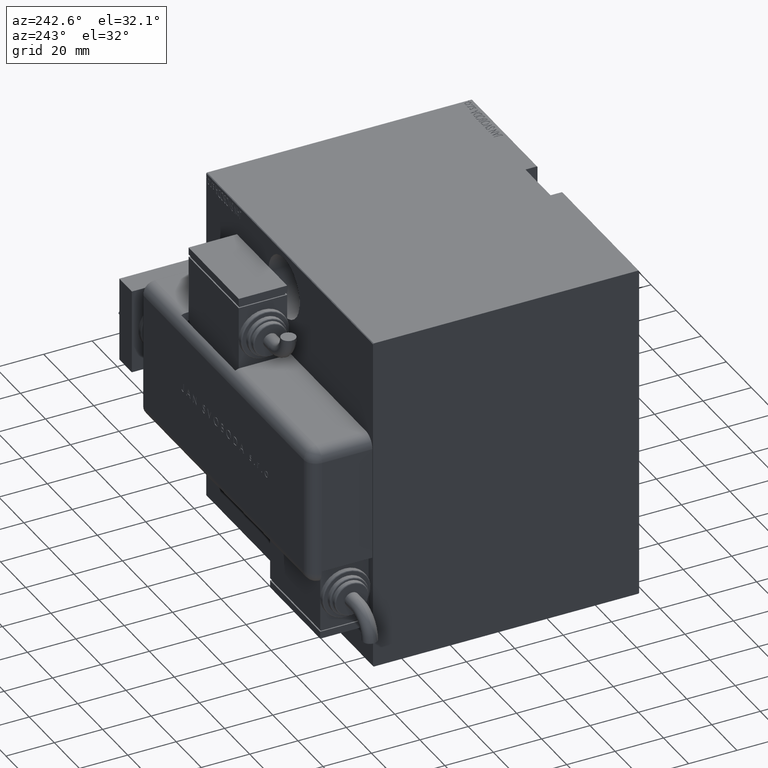
[diagram: clean part render]
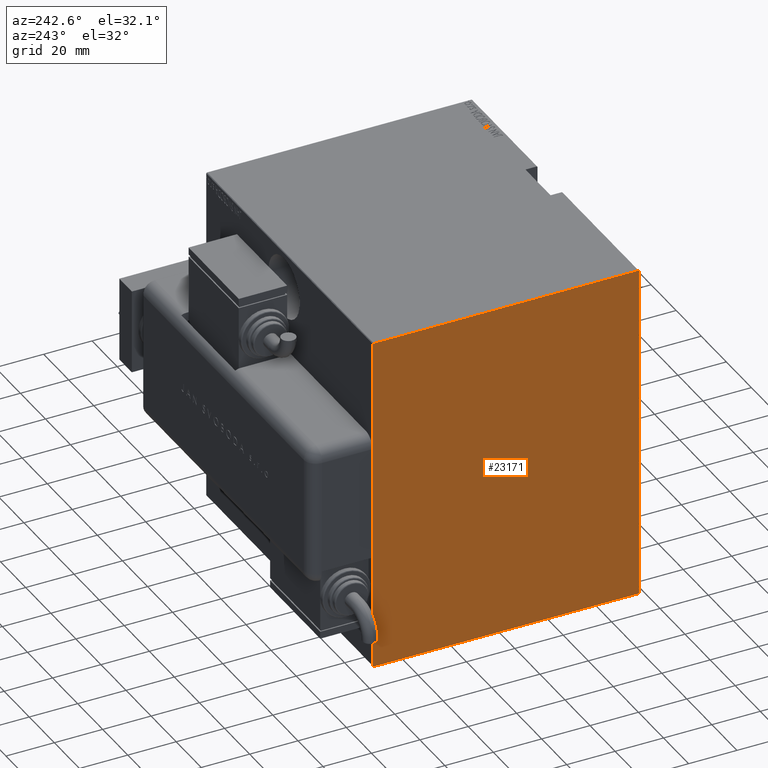
[diagram: same view with one face highlighted and labeled with its STEP entity id]
A machine part, auxiliary view. The second image highlights one B-rep face of the part: STEP entity #23171.
In plain terms, the highlighted planar face has unit normal (-1, 0, 0).
Its self-contained STEP definition (entity closure, byte-faithful):
#76 = CARTESIAN_POINT ( 'NONE',  ( 133.0000000000000000, -54.69999999999999574, 69.99999999999998579 ) ) ;
#165 = CARTESIAN_POINT ( 'NONE',  ( 133.0000000000000000, 62.34999999999749321, -62.35000000000325571 ) ) ;
#758 = EDGE_CURVE ( 'NONE', #52695, #34155, #58265, .T. ) ;
#1561 = LINE ( 'NONE', #24647, #45983 ) ;
#2061 = CARTESIAN_POINT ( 'NONE',  ( 133.0000000000000000, -54.99999999999999289, -70.00000000000001421 ) ) ;
#3251 = FACE_OUTER_BOUND ( 'NONE', #41479, .T. ) ;
#4782 = LINE ( 'NONE', #55440, #19285 ) ;
#5853 = DIRECTION ( 'NONE',  ( -0.000000000000000000, -0.7071067811865638930, 0.7071067811865311414 ) ) ;
#6506 = AXIS2_PLACEMENT_3D ( 'NONE', #16590, #53029, #30207 ) ;
#6795 = DIRECTION ( 'NONE',  ( -0.000000000000000000, 0.7071067811865474617, -0.7071067811865474617 ) ) ;
#7361 = DIRECTION ( 'NONE',  ( 0.000000000000000000, -1.000000000000000000, -1.261617073437677999E-16 ) ) ;
#7946 = CARTESIAN_POINT ( 'NONE',  ( 133.0000000000000000, 54.99999999999999289, 70.00000000000000000 ) ) ;
#10211 = CARTESIAN_POINT ( 'NONE',  ( 133.0000000000000000, 54.70000000000002416, -70.00000000000001421 ) ) ;
#10655 = CARTESIAN_POINT ( 'NONE',  ( 133.0000000000000000, -62.35000000000001563, -62.35000000000001563 ) ) ;
#15171 = VERTEX_POINT ( 'NONE', #76 ) ;
#16023 = ORIENTED_EDGE ( 'NONE', *, *, #43296, .T. ) ;
#16590 = CARTESIAN_POINT ( 'NONE',  ( 133.0000000000000000, 0.000000000000000000, 0.000000000000000000 ) ) ;
#17731 = EDGE_CURVE ( 'NONE', #34155, #20257, #1561, .T. ) ;
#18953 = VECTOR ( 'NONE', #38471, 1000.000000000000000 ) ;
#19121 = VECTOR ( 'NONE', #5853, 1000.000000000000000 ) ;
#19285 = VECTOR ( 'NONE', #26989, 1000.000000000000114 ) ;
#19562 = LINE ( 'NONE', #2061, #23854 ) ;
#19642 = DIRECTION ( 'NONE',  ( 0.000000000000000000, -1.982541115402065110E-16, 1.000000000000000000 ) ) ;
#20257 = VERTEX_POINT ( 'NONE', #42714 ) ;
#20476 = EDGE_CURVE ( 'NONE', #40123, #31833, #51241, .T. ) ;
#21709 = ORIENTED_EDGE ( 'NONE', *, *, #758, .T. ) ;
#23171 = ADVANCED_FACE ( 'NONE', ( #3251 ), #33776, .T. ) ;
#23854 = VECTOR ( 'NONE', #33169, 1000.000000000000000 ) ;
#24633 = ORIENTED_EDGE ( 'NONE', *, *, #56096, .T. ) ;
#24647 = CARTESIAN_POINT ( 'NONE',  ( 133.0000000000000000, 55.00000000000002132, -70.00000000000001421 ) ) ;
#25195 = VERTEX_POINT ( 'NONE', #48527 ) ;
#26533 = DIRECTION ( 'NONE',  ( -0.000000000000000000, 0.7071067811865802133, 0.7071067811865149322 ) ) ;
#26989 = DIRECTION ( 'NONE',  ( 0.000000000000000000, -0.7071067811865474617, -0.7071067811865474617 ) ) ;
#27163 = VECTOR ( 'NONE', #6795, 1000.000000000000114 ) ;
#28240 = ORIENTED_EDGE ( 'NONE', *, *, #17731, .T. ) ;
#29229 = LINE ( 'NONE', #33389, #19121 ) ;
#29570 = LINE ( 'NONE', #33717, #18953 ) ;
#30034 = CARTESIAN_POINT ( 'NONE',  ( 133.0000000000000000, -54.99999999999999289, 69.70000000000000284 ) ) ;
#30207 = DIRECTION ( 'NONE',  ( 0.000000000000000000, 0.000000000000000000, -1.000000000000000000 ) ) ;
#31311 = EDGE_CURVE ( 'NONE', #25195, #15171, #43219, .T. ) ;
#31459 = ORIENTED_EDGE ( 'NONE', *, *, #20476, .T. ) ;
#31833 = VERTEX_POINT ( 'NONE', #50798 ) ;
#32192 = CARTESIAN_POINT ( 'NONE',  ( 133.0000000000000000, 55.00000000000002132, -69.70000000000005969 ) ) ;
#33169 = DIRECTION ( 'NONE',  ( 0.000000000000000000, 1.000000000000000000, 0.000000000000000000 ) ) ;
#33389 = CARTESIAN_POINT ( 'NONE',  ( 133.0000000000000000, 62.34999999999872955, 62.35000000000162146 ) ) ;
#33717 = CARTESIAN_POINT ( 'NONE',  ( 133.0000000000000000, -54.99999999999999289, 69.99999999999998579 ) ) ;
#33776 = PLANE ( 'NONE',  #6506 ) ;
#34155 = VERTEX_POINT ( 'NONE', #32192 ) ;
#38329 = ORIENTED_EDGE ( 'NONE', *, *, #57025, .T. ) ;
#38471 = DIRECTION ( 'NONE',  ( 0.000000000000000000, 0.000000000000000000, -1.000000000000000000 ) ) ;
#40123 = VERTEX_POINT ( 'NONE', #40444 ) ;
#40444 = CARTESIAN_POINT ( 'NONE',  ( 133.0000000000000000, -54.99999999999999289, -69.70000000000003126 ) ) ;
#41479 = EDGE_LOOP ( 'NONE', ( #38329, #21709, #28240, #24633, #47563, #16023, #49067, #31459 ) ) ;
#42577 = VECTOR ( 'NONE', #26533, 999.9999999999998863 ) ;
#42714 = CARTESIAN_POINT ( 'NONE',  ( 133.0000000000000000, 54.99999999999999289, 69.70000000000003126 ) ) ;
#43219 = LINE ( 'NONE', #7946, #56588 ) ;
#43296 = EDGE_CURVE ( 'NONE', #15171, #47891, #4782, .T. ) ;
#45983 = VECTOR ( 'NONE', #19642, 1000.000000000000000 ) ;
#46924 = EDGE_CURVE ( 'NONE', #47891, #40123, #29570, .T. ) ;
#47563 = ORIENTED_EDGE ( 'NONE', *, *, #31311, .T. ) ;
#47891 = VERTEX_POINT ( 'NONE', #30034 ) ;
#48527 = CARTESIAN_POINT ( 'NONE',  ( 133.0000000000000000, 54.69999999999999574, 70.00000000000000000 ) ) ;
#49067 = ORIENTED_EDGE ( 'NONE', *, *, #46924, .T. ) ;
#50798 = CARTESIAN_POINT ( 'NONE',  ( 133.0000000000000000, -54.69999999999999574, -70.00000000000001421 ) ) ;
#51241 = LINE ( 'NONE', #10655, #27163 ) ;
#52695 = VERTEX_POINT ( 'NONE', #10211 ) ;
#53029 = DIRECTION ( 'NONE',  ( 1.000000000000000000, 0.000000000000000000, 0.000000000000000000 ) ) ;
#55440 = CARTESIAN_POINT ( 'NONE',  ( 133.0000000000000000, -62.34999999999999432, 62.34999999999999432 ) ) ;
#56096 = EDGE_CURVE ( 'NONE', #20257, #25195, #29229, .T. ) ;
#56588 = VECTOR ( 'NONE', #7361, 1000.000000000000000 ) ;
#57025 = EDGE_CURVE ( 'NONE', #31833, #52695, #19562, .T. ) ;
#58265 = LINE ( 'NONE', #165, #42577 ) ;